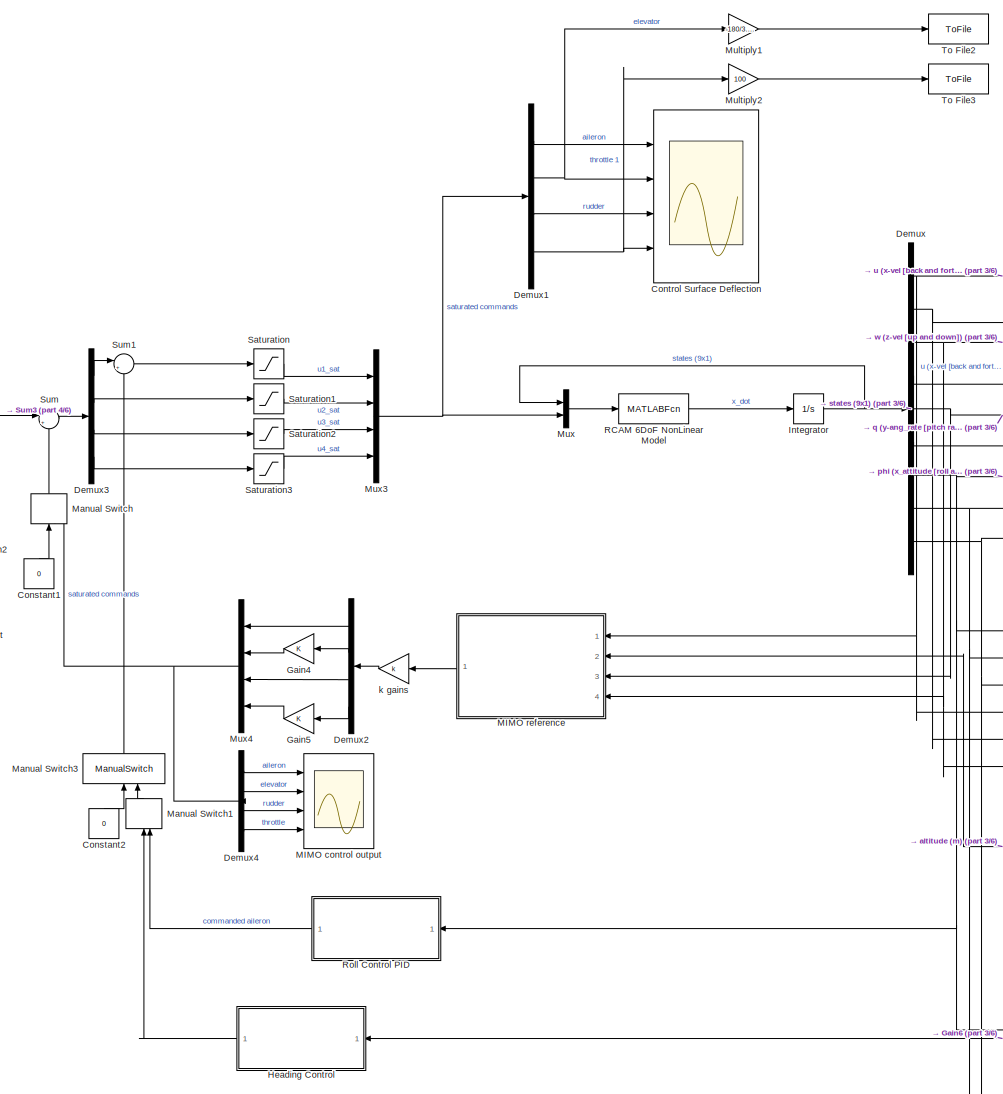
[diagram: root canvas - part 1/6, left side, full height]
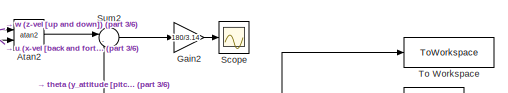
[diagram: root canvas - part 2/6, top right region]
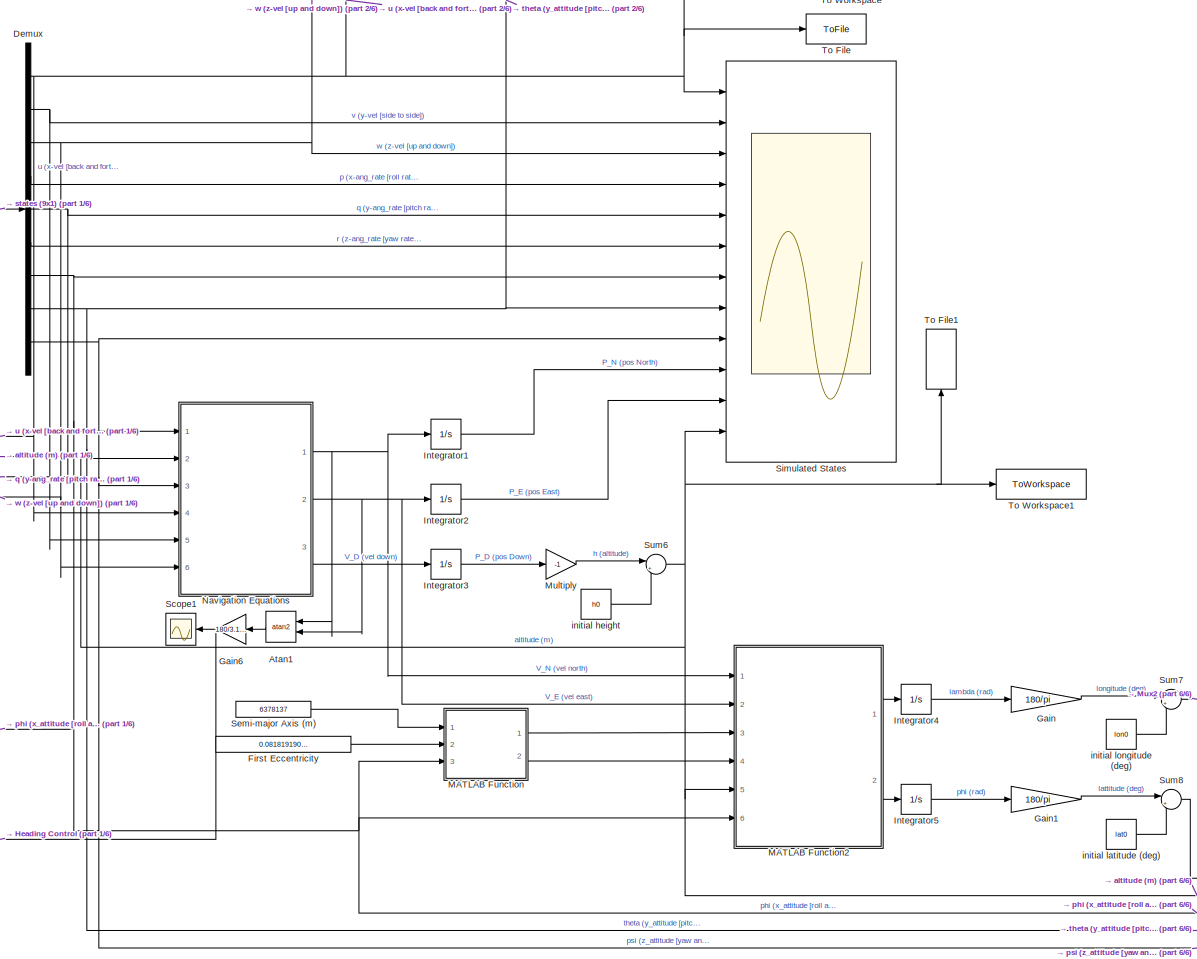
[diagram: root canvas - part 3/6, right side, full height]
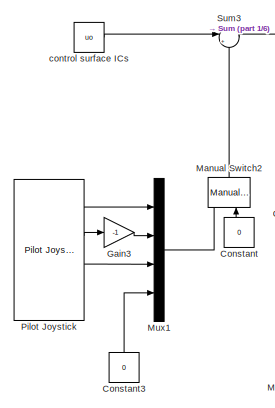
[diagram: root canvas - part 4/6, middle left region]
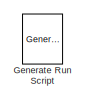
[diagram: root canvas - part 5/6, bottom right region]
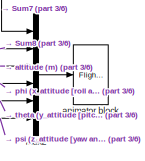
[diagram: root canvas - part 6/6, bottom right region]
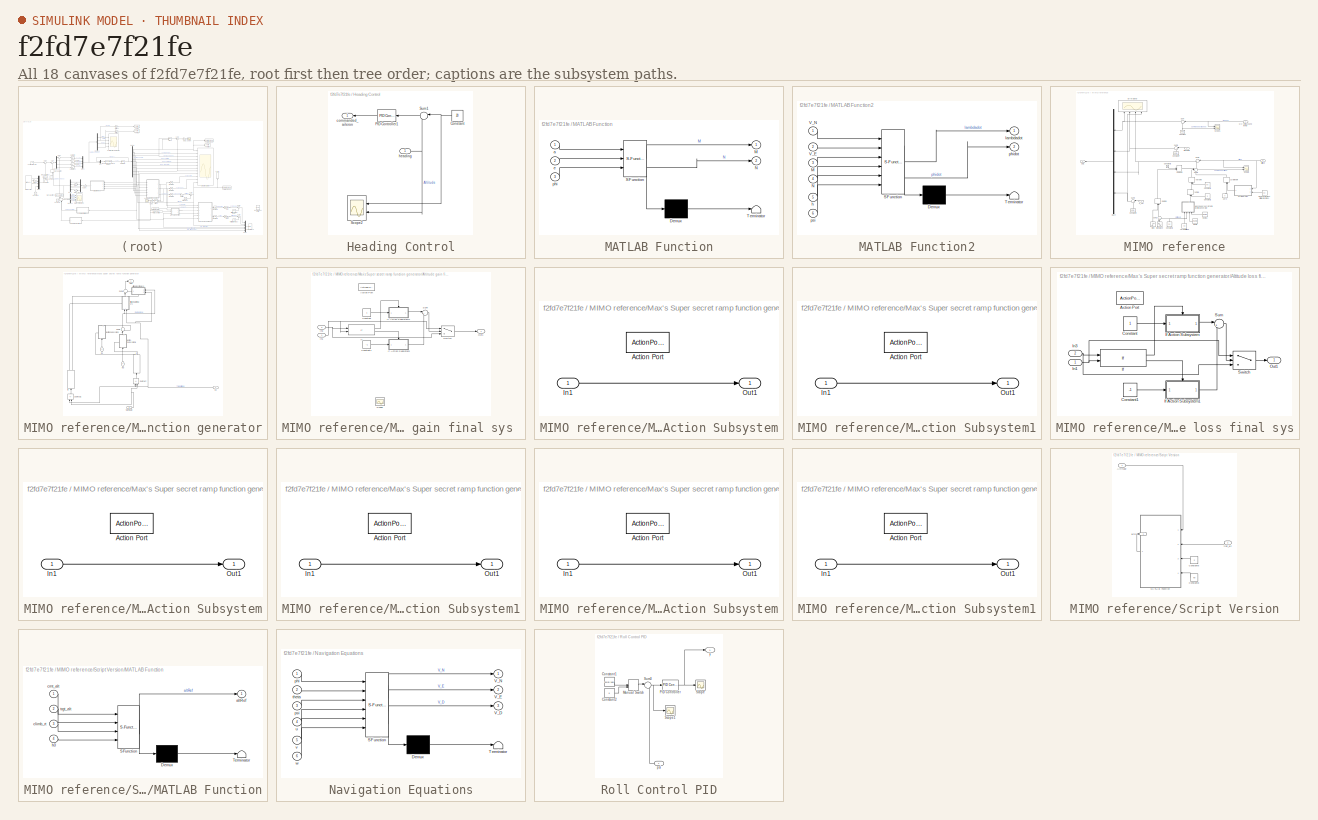
[diagram: thumbnail index - all 18 canvases of the model, root first then tree order]
MODEL slx_f2fd7e7f21fe
KIND model
CONFIG AbsTol = auto
CONFIG EnableMultiTasking = off
CONFIG FixedStep = 0.001
CONFIG MaxStep = auto
CONFIG MinStep = auto
CONFIG RelTol = 1e-3
CONFIG SampleTimeConstraint = Unconstrained
CONFIG SolverName = VariableStepAuto
CONFIG StartTime = 0.0
CONFIG StopTime = TF
WORKSPACE source: mxarray member
WORKSPACE RampTime = 0
BLOCK [Trigonometry] Atan1
  NameLocation = top
  Operator = atan2
  Ports = [2, 1]
BLOCK [Trigonometry] Atan2
  Operator = atan2
  Ports = [2, 1]
BLOCK [Constant] Constant
  NameLocation = right
  Value = 0
BLOCK [Constant] Constant1
  NameLocation = right
  Value = 0
BLOCK [Constant] Constant2
  NameLocation = right
  Value = 0
BLOCK [Constant] Constant3
  NameLocation = right
  Value = 0
BLOCK [Scope] Control Surface Deflection
  Floating = off
  NumInputPorts = 4
  Ports = [4]
  ScopeSpecificationString = Simulink.scopes.TimeScopeBlockCfg('CurrentConfiguration', extmgr.ConfigurationSet(extmgr.Configuration('Core','General UI',true),extmgr.Configuration('Core','Source UI',true),extmgr.Configuration('Sources','WiredSimulink',true),extmgr.Configuration('Visuals','Time Domain',true,'SerializedDisplays',{struct('MinYLimReal','-0.00086','MaxYLimReal','-0.00066','YLabelReal','','MinYLimMag','0.00000','Max...<+3884ch>
BLOCK [Demux] Demux
  Outputs = 9
  Ports = [1, 9]
BLOCK [Demux] Demux1
  Ports = [1, 4]
BLOCK [Demux] Demux2
  NameLocation = top
  Ports = [1, 4]
BLOCK [Demux] Demux3
  Ports = [1, 4]
BLOCK [Demux] Demux4
  Ports = [1, 4]
BLOCK [Constant] First Eccentricity
  Value = 0.081819190842622
BLOCK [Gain] Gain
  Gain = 180/pi
BLOCK [Gain] Gain1
  Gain = 180/pi
BLOCK [Gain] Gain2
  Gain = 180/3.14
BLOCK [Gain] Gain3
  Gain = -1
BLOCK [Gain] Gain4
  NameLocation = top
BLOCK [Gain] Gain5
  NameLocation = top
BLOCK [Gain] Gain6
  Gain = 180/3.1415
  NameLocation = top
BLOCK [Reference] Generate Run Script  REF=aerolibfltsims/Generate
Run Script
  Ports = []
  SourceBlock = aerolibfltsims/Generate\nRun Script
  SourceProductBaseCode = AE
  SourceType = Generate FlightGear Run Script
BLOCK [SubSystem] Heading Control
  NameLocation = top
  Ports = [1, 1]
  RequestExecContextInheritance = off
BLOCK [Constant] Heading Control/Constant
  NameLocation = top
  Value = 20
BLOCK [Reference] Heading Control/PID Controller1  REF=slpidlib/PID Controller
  NameLocation = top
  Ports = [1, 1]
  SourceBlock = slpidlib/PID Controller
  SourceProductBaseCode = SL
  SourceType = PID 1dof
BLOCK [Scope] Heading Control/Scope2
  Floating = off
  NameLocation = top
  NumInputPorts = 2
  Ports = [2]
  ScopeSpecificationString = Simulink.scopes.TimeScopeBlockCfg('CurrentConfiguration', extmgr.ConfigurationSet(extmgr.Configuration('Core','General UI',true),extmgr.Configuration('Core','Source UI',true),extmgr.Configuration('Sources','WiredSimulink',true,'DataLoggingVariableName','ScopeData4'),extmgr.Configuration('Visuals','Time Domain',true,'SerializedDisplays',{struct('MinYLimReal','-27.46887','MaxYLimReal','173.04822','Y...<+1485ch>
BLOCK [Sum] Heading Control/Sum1
  Inputs = |-+
  NameLocation = top
  Ports = [2, 1]
BLOCK [Outport] Heading Control/commanded_aileron
  NameLocation = top
BLOCK [Inport] Heading Control/heading
  NameLocation = top
BLOCK [Integrator] Integrator
  InitialCondition = x0
  Ports = [1, 1]
BLOCK [Integrator] Integrator1
  Ports = [1, 1]
BLOCK [Integrator] Integrator2
  Ports = [1, 1]
BLOCK [Integrator] Integrator3
  Ports = [1, 1]
BLOCK [Integrator] Integrator4
  Ports = [1, 1]
BLOCK [Integrator] Integrator5
  LowerSaturationLimit = -pi
  Ports = [1, 1]
  UpperSaturationLimit = pi
BLOCK [SubSystem] MATLAB Function
  ErrorFcn = Stateflow.Translate.translate
  PermitHierarchicalResolution = ExplicitOnly
  Ports = [3, 2]
  RequestExecContextInheritance = off
  SFBlockType = MATLAB Function
  TreatAsAtomicUnit = on
BLOCK [Demux] MATLAB Function/ Demux 
  Outputs = 1
  Ports = [1, 1]
BLOCK [S-Function] MATLAB Function/ SFunction 
  EnableBusSupport = on
  FunctionName = sf_sfun
  PortCounts = [3 3]
  Ports = [3, 3]
  SFcnIsStateOwnerBlock = off
  SFunctionDeploymentMode = off
  Tag = Stateflow S-Function 1
BLOCK [Terminator] MATLAB Function/ Terminator 
BLOCK [Outport] MATLAB Function/M
BLOCK [Outport] MATLAB Function/N
  Port = 2
BLOCK [Inport] MATLAB Function/a
BLOCK [Inport] MATLAB Function/e
  Port = 2
BLOCK [Inport] MATLAB Function/phi
  Port = 3
BLOCK [SubSystem] MATLAB Function2
  ErrorFcn = Stateflow.Translate.translate
  PermitHierarchicalResolution = ExplicitOnly
  Ports = [6, 2]
  RequestExecContextInheritance = off
  SFBlockType = MATLAB Function
  TreatAsAtomicUnit = on
BLOCK [Demux] MATLAB Function2/ Demux 
  Outputs = 1
  Ports = [1, 1]
BLOCK [S-Function] MATLAB Function2/ SFunction 
  EnableBusSupport = on
  FunctionName = sf_sfun
  PortCounts = [6 3]
  Ports = [6, 3]
  SFcnIsStateOwnerBlock = off
  SFunctionDeploymentMode = off
  Tag = Stateflow S-Function 4
BLOCK [Terminator] MATLAB Function2/ Terminator 
BLOCK [Inport] MATLAB Function2/M
  Port = 3
BLOCK [Inport] MATLAB Function2/N
  Port = 4
BLOCK [Inport] MATLAB Function2/V_E
  Port = 2
BLOCK [Inport] MATLAB Function2/V_N
BLOCK [Inport] MATLAB Function2/h
  Port = 5
BLOCK [Outport] MATLAB Function2/lambdadot
BLOCK [Outport] MATLAB Function2/phidot
  Port = 2
BLOCK [Inport] MATLAB Function2/psi
  Port = 6
BLOCK [Scope] MIMO control output
  Floating = off
  NumInputPorts = 4
  Ports = [4]
  ScopeSpecificationString = Simulink.scopes.TimeScopeBlockCfg('CurrentConfiguration', extmgr.ConfigurationSet(extmgr.Configuration('Core','General UI',true),extmgr.Configuration('Core','Source UI',true),extmgr.Configuration('Sources','WiredSimulink',true,'DataLoggingVariableName','ScopeData1'),extmgr.Configuration('Visuals','Time Domain',true,'SerializedDisplays',{struct('MinYLimReal','-1.00000','MaxYLimReal','1.00000','YLab...<+3490ch>
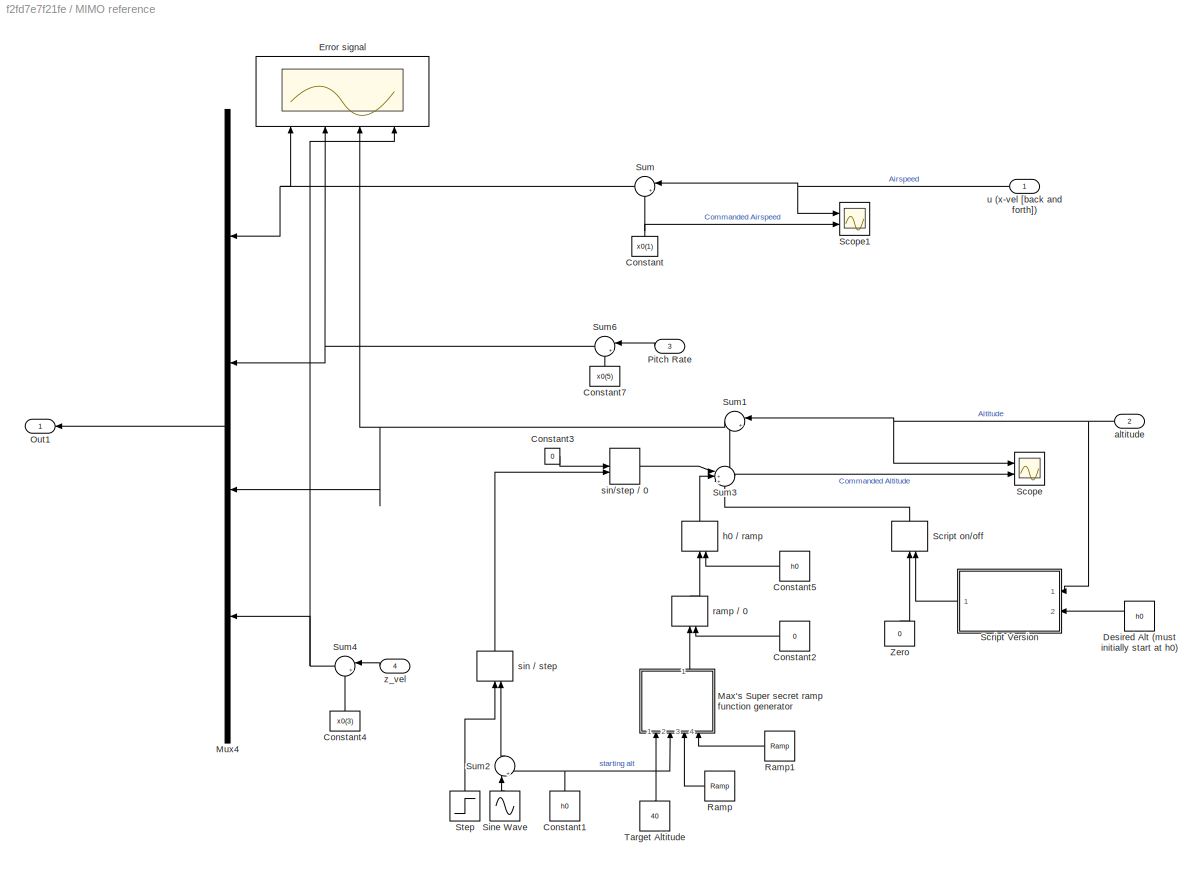
BLOCK [SubSystem] MIMO reference
  NameLocation = top
  Ports = [4, 1]
  RequestExecContextInheritance = off
BLOCK [Constant] MIMO reference/Constant
  NameLocation = right
  Value = x0(1)
BLOCK [Constant] MIMO reference/Constant1
  NameLocation = right
  Value = h0
BLOCK [Constant] MIMO reference/Constant2
  NameLocation = top
  Value = 0
BLOCK [Constant] MIMO reference/Constant3
  Value = 0
BLOCK [Constant] MIMO reference/Constant4
  NameLocation = right
  Value = x0(3)
BLOCK [Constant] MIMO reference/Constant5
  NameLocation = top
  Value = h0
BLOCK [Constant] MIMO reference/Constant7
  NameLocation = right
  Value = x0(5)
BLOCK [Constant] MIMO reference/Desired Alt (must initially start at h0)
  NameLocation = top
  Value = h0
BLOCK [Scope] MIMO reference/Error signal
  Floating = off
  NameLocation = right
  NumInputPorts = 4
  Ports = [4]
  ScopeSpecificationString = Simulink.scopes.TimeScopeBlockCfg('CurrentConfiguration', extmgr.ConfigurationSet(extmgr.Configuration('Core','General UI',true),extmgr.Configuration('Core','Source UI',true),extmgr.Configuration('Sources','WiredSimulink',true,'DataLoggingVariableName','ScopeData1'),extmgr.Configuration('Visuals','Time Domain',true,'SerializedDisplays',{struct('MinYLimReal','-1.66885','MaxYLimReal','0.94564','YLab...<+3477ch>
BLOCK [SubSystem] MIMO reference/Max's Super secret ramp function generator
  NameLocation = right
  Ports = [4, 1]
  RequestExecContextInheritance = off
BLOCK [SubSystem] MIMO reference/Max's Super secret ramp function generator/Altitude gain final sys 
  NameLocation = right
  Ports = [2, 1, 0, 0, 0, 0, 0, 1]
  RequestExecContextInheritance = off
  TreatAsAtomicUnit = on
BLOCK [ActionPort] MIMO reference/Max's Super secret ramp function generator/Altitude gain final sys /Action Port
  ActionPortLabel = if(u1 >= 0)
BLOCK [Constant] MIMO reference/Max's Super secret ramp function generator/Altitude gain final sys /Constant
BLOCK [Constant] MIMO reference/Max's Super secret ramp function generator/Altitude gain final sys /Constant1
  Value = -1
BLOCK [If] MIMO reference/Max's Super secret ramp function generator/Altitude gain final sys /If
  IfExpression = u1 > u2
  NumInputs = 2
  Ports = [2, 2]
BLOCK [SubSystem] MIMO reference/Max's Super secret ramp function generator/Altitude gain final sys /If Action Subsystem
  Ports = [1, 1, 0, 0, 0, 0, 0, 1]
  RequestExecContextInheritance = off
  TreatAsAtomicUnit = on
BLOCK [ActionPort] MIMO reference/Max's Super secret ramp function generator/Altitude gain final sys /If Action Subsystem/Action Port
  ActionPortLabel = else
BLOCK [Inport] MIMO reference/Max's Super secret ramp function generator/Altitude gain final sys /If Action Subsystem/In1
BLOCK [Outport] MIMO reference/Max's Super secret ramp function generator/Altitude gain final sys /If Action Subsystem/Out1
BLOCK [SubSystem] MIMO reference/Max's Super secret ramp function generator/Altitude gain final sys /If Action Subsystem1
  Ports = [1, 1, 0, 0, 0, 0, 0, 1]
  RequestExecContextInheritance = off
  TreatAsAtomicUnit = on
BLOCK [ActionPort] MIMO reference/Max's Super secret ramp function generator/Altitude gain final sys /If Action Subsystem1/Action Port
  ActionPortLabel = if(u1 > u2)
BLOCK [Inport] MIMO reference/Max's Super secret ramp function generator/Altitude gain final sys /If Action Subsystem1/In1
BLOCK [Outport] MIMO reference/Max's Super secret ramp function generator/Altitude gain final sys /If Action Subsystem1/Out1
BLOCK [Inport] MIMO reference/Max's Super secret ramp function generator/Altitude gain final sys /In1
BLOCK [Inport] MIMO reference/Max's Super secret ramp function generator/Altitude gain final sys /In3
  Port = 2
BLOCK [Outport] MIMO reference/Max's Super secret ramp function generator/Altitude gain final sys /Out1
BLOCK [Scope] MIMO reference/Max's Super secret ramp function generator/Altitude gain final sys /Scope
  Floating = off
  NameLocation = left
  NumInputPorts = 4
  Ports = [4]
  ScopeSpecificationString = Simulink.scopes.TimeScopeBlockCfg('CurrentConfiguration', extmgr.ConfigurationSet(extmgr.Configuration('Core','General UI',true),extmgr.Configuration('Core','Source UI',true),extmgr.Configuration('Sources','WiredSimulink',true,'DataLoggingVariableName','ScopeData1'),extmgr.Configuration('Visuals','Time Domain',true,'SerializedDisplays',{struct('MinYLimReal','-1.00000','MaxYLimReal','1.00000','YLab...<+1613ch>
BLOCK [Sum] MIMO reference/Max's Super secret ramp function generator/Altitude gain final sys /Sum
  Inputs = |++
  Ports = [2, 1]
BLOCK [Switch] MIMO reference/Max's Super secret ramp function generator/Altitude gain final sys /Switch
  Criteria = u2 ~= 0
  InputSameDT = off
  SaturateOnIntegerOverflow = off
BLOCK [SubSystem] MIMO reference/Max's Super secret ramp function generator/Altitude loss final sys
  NameLocation = top
  Ports = [2, 1, 0, 0, 0, 0, 0, 1]
  RequestExecContextInheritance = off
  TreatAsAtomicUnit = on
BLOCK [ActionPort] MIMO reference/Max's Super secret ramp function generator/Altitude loss final sys/Action Port
  ActionPortLabel = else
BLOCK [Constant] MIMO reference/Max's Super secret ramp function generator/Altitude loss final sys/Constant
BLOCK [Constant] MIMO reference/Max's Super secret ramp function generator/Altitude loss final sys/Constant1
  Value = -1
BLOCK [If] MIMO reference/Max's Super secret ramp function generator/Altitude loss final sys/If
  IfExpression = u2 > u1
  NumInputs = 2
  Ports = [2, 2]
BLOCK [SubSystem] MIMO reference/Max's Super secret ramp function generator/Altitude loss final sys/If Action Subsystem
  Ports = [1, 1, 0, 0, 0, 0, 0, 1]
  RequestExecContextInheritance = off
  TreatAsAtomicUnit = on
BLOCK [ActionPort] MIMO reference/Max's Super secret ramp function generator/Altitude loss final sys/If Action Subsystem/Action Port
  ActionPortLabel = if(u2 > u1)
BLOCK [Inport] MIMO reference/Max's Super secret ramp function generator/Altitude loss final sys/If Action Subsystem/In1
BLOCK [Outport] MIMO reference/Max's Super secret ramp function generator/Altitude loss final sys/If Action Subsystem/Out1
BLOCK [SubSystem] MIMO reference/Max's Super secret ramp function generator/Altitude loss final sys/If Action Subsystem1
  Ports = [1, 1, 0, 0, 0, 0, 0, 1]
  RequestExecContextInheritance = off
  TreatAsAtomicUnit = on
BLOCK [ActionPort] MIMO reference/Max's Super secret ramp function generator/Altitude loss final sys/If Action Subsystem1/Action Port
  ActionPortLabel = else
BLOCK [Inport] MIMO reference/Max's Super secret ramp function generator/Altitude loss final sys/If Action Subsystem1/In1
BLOCK [Outport] MIMO reference/Max's Super secret ramp function generator/Altitude loss final sys/If Action Subsystem1/Out1
BLOCK [Inport] MIMO reference/Max's Super secret ramp function generator/Altitude loss final sys/In1
BLOCK [Inport] MIMO reference/Max's Super secret ramp function generator/Altitude loss final sys/In3
  Port = 2
BLOCK [Outport] MIMO reference/Max's Super secret ramp function generator/Altitude loss final sys/Out1
BLOCK [Sum] MIMO reference/Max's Super secret ramp function generator/Altitude loss final sys/Sum
  Inputs = |++
  Ports = [2, 1]
BLOCK [Switch] MIMO reference/Max's Super secret ramp function generator/Altitude loss final sys/Switch
  Criteria = u2 > Threshold
  InputSameDT = off
  SaturateOnIntegerOverflow = off
BLOCK [If] MIMO reference/Max's Super secret ramp function generator/If
  IfExpression = u1 >= 0
  NameLocation = right
  Ports = [1, 2]
BLOCK [SubSystem] MIMO reference/Max's Super secret ramp function generator/If Action Subsystem
  NameLocation = right
  Ports = [1, 1, 0, 0, 0, 0, 0, 1]
  RequestExecContextInheritance = off
  TreatAsAtomicUnit = on
BLOCK [ActionPort] MIMO reference/Max's Super secret ramp function generator/If Action Subsystem/Action Port
  ActionPortLabel = if(u1 >= 0)
BLOCK [Inport] MIMO reference/Max's Super secret ramp function generator/If Action Subsystem/In1
BLOCK [Outport] MIMO reference/Max's Super secret ramp function generator/If Action Subsystem/Out1
BLOCK [SubSystem] MIMO reference/Max's Super secret ramp function generator/If Action Subsystem1
  NameLocation = right
  Ports = [1, 1, 0, 0, 0, 0, 0, 1]
  RequestExecContextInheritance = off
  TreatAsAtomicUnit = on
BLOCK [ActionPort] MIMO reference/Max's Super secret ramp function generator/If Action Subsystem1/Action Port
  ActionPortLabel = else
BLOCK [Inport] MIMO reference/Max's Super secret ramp function generator/If Action Subsystem1/In1
BLOCK [Outport] MIMO reference/Max's Super secret ramp function generator/If Action Subsystem1/Out1
BLOCK [If] MIMO reference/Max's Super secret ramp function generator/If1
  IfExpression = u1 >= 0
  NameLocation = right
  Ports = [1, 2]
BLOCK [Inport] MIMO reference/Max's Super secret ramp function generator/In1
  NameLocation = right
  Port = 3
BLOCK [Inport] MIMO reference/Max's Super secret ramp function generator/In2
BLOCK [Inport] MIMO reference/Max's Super secret ramp function generator/In3
  NameLocation = right
  Port = 4
BLOCK [Outport] MIMO reference/Max's Super secret ramp function generator/Out1
BLOCK [Sum] MIMO reference/Max's Super secret ramp function generator/Subtract
  IconShape = rectangular
  Inputs = +-
  NameLocation = right
  Ports = [2, 1]
BLOCK [Sum] MIMO reference/Max's Super secret ramp function generator/Subtract1
  IconShape = rectangular
  Inputs = +-
  NameLocation = right
  Ports = [2, 1]
BLOCK [Sum] MIMO reference/Max's Super secret ramp function generator/Sum2
  Inputs = |++
  NameLocation = right
  Ports = [2, 1]
BLOCK [Sum] MIMO reference/Max's Super secret ramp function generator/Sum4
  Inputs = |++
  NameLocation = right
  Ports = [2, 1]
BLOCK [Inport] MIMO reference/Max's Super secret ramp function generator/starting alt
  Port = 2
BLOCK [Mux] MIMO reference/Mux4
  DisplayOption = bar
  NameLocation = top
  Ports = [4, 1]
BLOCK [Outport] MIMO reference/Out1
BLOCK [Inport] MIMO reference/Pitch Rate
  NameLocation = top
  Port = 3
BLOCK [Reference] MIMO reference/Ramp  REF=simulink/Sources/Ramp
  NameLocation = top
  Ports = [0, 1]
  SourceBlock = simulink/Sources/Ramp
  SourceProductBaseCode = SL
  SourceType = Ramp
BLOCK [Reference] MIMO reference/Ramp1  REF=simulink/Sources/Ramp
  NameLocation = top
  Ports = [0, 1]
  SourceBlock = simulink/Sources/Ramp
  SourceProductBaseCode = SL
  SourceType = Ramp
BLOCK [Scope] MIMO reference/Scope
  Floating = off
  NumInputPorts = 2
  Ports = [2]
  ScopeSpecificationString = Simulink.scopes.TimeScopeBlockCfg('CurrentConfiguration', extmgr.ConfigurationSet(extmgr.Configuration('Core','General UI',true,'FigureColor',[0 0 0]),extmgr.Configuration('Core','Source UI',true),extmgr.Configuration('Sources','WiredSimulink',true,'DataLoggingVariableName','ScopeData1'),extmgr.Configuration('Visuals','Time Domain',true,'SerializedDisplays',{struct('MinYLimReal','-0.39156','MaxYLi...<+1566ch>
BLOCK [Scope] MIMO reference/Scope1
  Floating = off
  NumInputPorts = 2
  Ports = [2]
  ScopeSpecificationString = Simulink.scopes.TimeScopeBlockCfg('CurrentConfiguration', extmgr.ConfigurationSet(extmgr.Configuration('Core','General UI',true,'FigureColor',[0 0 0]),extmgr.Configuration('Core','Source UI',true),extmgr.Configuration('Sources','WiredSimulink',true,'DataLoggingVariableName','ScopeData1'),extmgr.Configuration('Visuals','Time Domain',true,'SerializedDisplays',{struct('MinYLimReal','19.8694','MaxYLim...<+1594ch>
BLOCK [SubSystem] MIMO reference/Script Version
  NameLocation = top
  Ports = [2, 1]
  RequestExecContextInheritance = off
BLOCK [Inport] MIMO reference/Script Version/Altitude
BLOCK [Constant] MIMO reference/Script Version/Constant6
  NameLocation = top
  Value = 2
BLOCK [Constant] MIMO reference/Script Version/Constant8
  NameLocation = top
  Value = h0
BLOCK [SubSystem] MIMO reference/Script Version/MATLAB Function
  ErrorFcn = Stateflow.Translate.translate
  NameLocation = top
  PermitHierarchicalResolution = ExplicitOnly
  Ports = [4, 1]
  RequestExecContextInheritance = off
  SFBlockType = MATLAB Function
  TreatAsAtomicUnit = on
BLOCK [Demux] MIMO reference/Script Version/MATLAB Function/ Demux 
  Outputs = 1
  Ports = [1, 1]
BLOCK [S-Function] MIMO reference/Script Version/MATLAB Function/ SFunction 
  EnableBusSupport = on
  FunctionName = sf_sfun
  PortCounts = [4 2]
  Ports = [4, 2]
  SFcnIsStateOwnerBlock = off
  SFunctionDeploymentMode = off
  Tag = Stateflow S-Function 3
BLOCK [Terminator] MIMO reference/Script Version/MATLAB Function/ Terminator 
BLOCK [Outport] MIMO reference/Script Version/MATLAB Function/altRef
BLOCK [Inport] MIMO reference/Script Version/MATLAB Function/climb_rt
  Port = 3
BLOCK [Inport] MIMO reference/Script Version/MATLAB Function/crnt_alt
BLOCK [Inport] MIMO reference/Script Version/MATLAB Function/h0
  Port = 4
BLOCK [Inport] MIMO reference/Script Version/MATLAB Function/trgt_alt
  Port = 2
BLOCK [Outport] MIMO reference/Script Version/altRef
BLOCK [Inport] MIMO reference/Script Version/trgt_alt
  Port = 2
BLOCK [ManualSwitch] MIMO reference/Script on//off
  CurrentSetting = 0
  NameLocation = right
BLOCK [Sin] MIMO reference/Sine Wave
  Amplitude = 10
  Frequency = 0.1
  NameLocation = right
  Ports = [0, 1]
  SampleTime = 0
BLOCK [Step] MIMO reference/Step
  After = 51
  Before = 50
  NameLocation = right
  SampleTime = 0
  Time = 10
BLOCK [Sum] MIMO reference/Sum
  Inputs = |+-
  NameLocation = top
  Ports = [2, 1]
BLOCK [Sum] MIMO reference/Sum1
  Inputs = |+-
  NameLocation = top
  Ports = [2, 1]
BLOCK [Sum] MIMO reference/Sum2
  Inputs = |++
  NameLocation = right
  Ports = [2, 1]
BLOCK [Sum] MIMO reference/Sum3
  Inputs = |+++
  Ports = [3, 1]
BLOCK [Sum] MIMO reference/Sum4
  Inputs = |+-
  NameLocation = top
  Ports = [2, 1]
BLOCK [Sum] MIMO reference/Sum6
  Inputs = |+-
  NameLocation = top
  Ports = [2, 1]
BLOCK [Constant] MIMO reference/Target Altitude
  NameLocation = right
  Value = 40
BLOCK [Constant] MIMO reference/Zero
  NameLocation = right
  OutDataTypeStr = Inherit: Inherit via back propagation
  Value = 0
BLOCK [Inport] MIMO reference/altitude
  Port = 2
BLOCK [ManualSwitch] MIMO reference/h0 // ramp
  NameLocation = right
BLOCK [ManualSwitch] MIMO reference/ramp // 0
  CurrentSetting = 0
  NameLocation = right
BLOCK [ManualSwitch] MIMO reference/sin // step
  NameLocation = right
BLOCK [ManualSwitch] MIMO reference/sin//step // 0
BLOCK [Inport] MIMO reference/u (x-vel [back and forth])
BLOCK [Inport] MIMO reference/z_vel
  NameLocation = top
  Port = 4
BLOCK [ManualSwitch] Manual Switch
  NameLocation = right
BLOCK [ManualSwitch] Manual Switch1
  CurrentSetting = 0
  NameLocation = right
BLOCK [ManualSwitch] Manual Switch2
  NameLocation = right
BLOCK [ManualSwitch] Manual Switch3
  NameLocation = right
BLOCK [Gain] Multiply
  Gain = -1
BLOCK [Gain] Multiply1
  Gain = -180/3.1415
BLOCK [Gain] Multiply2
  Gain = 100
BLOCK [Mux] Mux
  DisplayOption = bar
  Inputs = 2
  Ports = [2, 1]
BLOCK [Mux] Mux1
  DisplayOption = bar
  Ports = [4, 1]
BLOCK [Mux] Mux2
  DisplayOption = bar
  Inputs = 6
  Ports = [6, 1]
BLOCK [Mux] Mux3
  DisplayOption = bar
  Ports = [4, 1]
BLOCK [Mux] Mux4
  DisplayOption = bar
  NameLocation = top
  Ports = [4, 1]
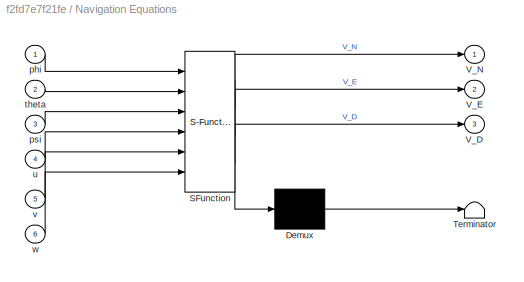
BLOCK [SubSystem] Navigation Equations
  ErrorFcn = Stateflow.Translate.translate
  PermitHierarchicalResolution = ExplicitOnly
  Ports = [6, 3]
  RequestExecContextInheritance = off
  SFBlockType = MATLAB Function
  TreatAsAtomicUnit = on
BLOCK [Demux] Navigation Equations/ Demux 
  Outputs = 1
  Ports = [1, 1]
BLOCK [S-Function] Navigation Equations/ SFunction 
  EnableBusSupport = on
  FunctionName = sf_sfun
  PortCounts = [6 4]
  Ports = [6, 4]
  SFcnIsStateOwnerBlock = off
  SFunctionDeploymentMode = off
  Tag = Stateflow S-Function 2
BLOCK [Terminator] Navigation Equations/ Terminator 
BLOCK [Outport] Navigation Equations/V_D
  Port = 3
BLOCK [Outport] Navigation Equations/V_E
  Port = 2
BLOCK [Outport] Navigation Equations/V_N
BLOCK [Inport] Navigation Equations/phi
BLOCK [Inport] Navigation Equations/psi
  Port = 3
BLOCK [Inport] Navigation Equations/theta
  Port = 2
BLOCK [Inport] Navigation Equations/u
  Port = 4
BLOCK [Inport] Navigation Equations/v
  Port = 5
BLOCK [Inport] Navigation Equations/w
  Port = 6
BLOCK [Reference] Pilot Joystick  REF=aerolibanimutils/Pilot Joystick
  Ports = [0, 4]
  SourceBlock = aerolibanimutils/Pilot Joystick
  SourceProductBaseCode = AE
  SourceType = PilotJoystick
BLOCK [MATLABFcn] RCAM 6DoF NonLinear Model
  MATLABFcn = RCAM_model_CFD(u(1:9), u(10:13))
  Ports = [1, 1]
BLOCK [SubSystem] Roll Control PID
  NameLocation = top
  Ports = [1, 1]
  RequestExecContextInheritance = off
BLOCK [Constant] Roll Control PID/Constant1
  Value = 30*pi/180
BLOCK [Constant] Roll Control PID/Constant2
  Value = 0
BLOCK [ManualSwitch] Roll Control PID/Manual Switch
  CurrentSetting = 0
BLOCK [Reference] Roll Control PID/PID Controller  REF=slpidlib/PID Controller
  Ports = [1, 1]
  SourceBlock = slpidlib/PID Controller
  SourceProductBaseCode = SL
  SourceType = PID 1dof
BLOCK [Scope] Roll Control PID/Scope
  Floating = off
  NumInputPorts = 1
  Ports = [1]
  ScopeSpecificationString = Simulink.scopes.TimeScopeBlockCfg('CurrentConfiguration', extmgr.ConfigurationSet(extmgr.Configuration('Core','General UI',true),extmgr.Configuration('Core','Source UI',true),extmgr.Configuration('Sources','WiredSimulink',true,'DataLoggingVariableName','ScopeData1'),extmgr.Configuration('Visuals','Time Domain',true,'SerializedDisplays',{struct('MinYLimReal','-0.51269','MaxYLimReal','0.25089','YLab...<+1373ch>
BLOCK [Scope] Roll Control PID/Scope1
  Floating = off
  NumInputPorts = 1
  Ports = [1]
  ScopeSpecificationString = Simulink.scopes.TimeScopeBlockCfg('CurrentConfiguration', extmgr.ConfigurationSet(extmgr.Configuration('Core','General UI',true),extmgr.Configuration('Core','Source UI',true),extmgr.Configuration('Sources','WiredSimulink',true,'DataLoggingVariableName','ScopeData2'),extmgr.Configuration('Visuals','Time Domain',true,'SerializedDisplays',{struct('MinYLimReal','-1.00000','MaxYLimReal','1.00000','YLab...<+1363ch>
BLOCK [Sum] Roll Control PID/Sum3
  Inputs = |-+
  Ports = [2, 1]
BLOCK [Inport] Roll Control PID/psi
BLOCK [Outport] Roll Control PID/y
BLOCK [Saturate] Saturation
  LowerLimit = u1min
  UpperLimit = u1max
BLOCK [Saturate] Saturation1
  LowerLimit = u2min
  UpperLimit = u2max
BLOCK [Saturate] Saturation2
  LowerLimit = u3min
  UpperLimit = u3max
BLOCK [Saturate] Saturation3
  LowerLimit = u4min
  UpperLimit = u4max
BLOCK [Scope] Scope
  Floating = off
  NumInputPorts = 1
  Ports = [1]
  ScopeSpecificationString = Simulink.scopes.TimeScopeBlockCfg('CurrentConfiguration', extmgr.ConfigurationSet(extmgr.Configuration('Core','General UI',true),extmgr.Configuration('Core','Source UI',true),extmgr.Configuration('Sources','WiredSimulink',true,'DataLoggingVariableName','ScopeData1'),extmgr.Configuration('Visuals','Time Domain',true,'SerializedDisplays',{struct('MinYLimReal','-4.64723','MaxYLimReal','9.3569','YLabe...<+1390ch>
BLOCK [Scope] Scope1
  Floating = off
  NameLocation = top
  NumInputPorts = 1
  Ports = [1]
  ScopeSpecificationString = Simulink.scopes.TimeScopeBlockCfg('CurrentConfiguration', extmgr.ConfigurationSet(extmgr.Configuration('Core','General UI',true),extmgr.Configuration('Core','Source UI',true),extmgr.Configuration('Sources','WiredSimulink',true,'DataLoggingVariableName','ScopeData1'),extmgr.Configuration('Visuals','Time Domain',true),extmgr.Configuration('Tools','Plot Navigation',true),extmgr.Configuration('Tools',...<+40ch>
BLOCK [Constant] Semi-major Axis (m)
  Value = 6378137
BLOCK [Scope] Simulated States
  Floating = off
  NumInputPorts = 12
  Ports = [12]
  ScopeSpecificationString = Simulink.scopes.TimeScopeBlockCfg('CurrentConfiguration', extmgr.ConfigurationSet(extmgr.Configuration('Core','General UI',true),extmgr.Configuration('Core','Source UI',true),extmgr.Configuration('Sources','WiredSimulink',true,'DataLoggingVariableName','ScopeData1'),extmgr.Configuration('Visuals','Time Domain',true,'SerializedDisplays',{struct('MinYLimReal','14.36324','MaxYLimReal','22.70362','YLa...<+9293ch>
BLOCK [Sum] Sum
  Inputs = |++
  Ports = [2, 1]
BLOCK [Sum] Sum1
  Inputs = |++
  Ports = [2, 1]
BLOCK [Sum] Sum2
  Inputs = |-+
  Ports = [2, 1]
BLOCK [Sum] Sum3
  Inputs = |++
  Ports = [2, 1]
BLOCK [Sum] Sum6
  Inputs = |++
  Ports = [2, 1]
BLOCK [Sum] Sum7
  Inputs = |++
  Ports = [2, 1]
BLOCK [Sum] Sum8
  Inputs = |++
  Ports = [2, 1]
BLOCK [ToFile] To File
  Filename = speed.mat
  MatrixName = speed
  Ports = [1]
  SaveFormat = Timeseries
BLOCK [ToFile] To File1
  Filename = data_alt.mat
  MatrixName = altitude
  NameLocation = right
  Ports = [1]
  SaveFormat = Timeseries
BLOCK [ToFile] To File2
  Filename = data_elevator.mat
  MatrixName = elvtr_dt
  Ports = [1]
  SaveFormat = Timeseries
BLOCK [ToFile] To File3
  Filename = data_throttle.mat
  MatrixName = thrtl_dt
  Ports = [1]
  SaveFormat = Timeseries
BLOCK [ToWorkspace] To Workspace
  FixptAsFi = on
  MaxDataPoints = inf
  Ports = [1]
  SampleTime = -1
  SaveFormat = Timeseries
  VariableName = plane_speed
BLOCK [ToWorkspace] To Workspace1
  FixptAsFi = on
  MaxDataPoints = inf
  Ports = [1]
  SampleTime = -1
  SaveFormat = Timeseries
  VariableName = plane_alt
BLOCK [Reference] animator block  REF=aerolibfltsims/FlightGear
Preconfigured
6DoF Animation
  Ports = [1]
  SourceBlock = aerolibfltsims/FlightGear\nPreconfigured\n6DoF Animation
  SourceProductBaseCode = AE
  SourceType = FlightGearQuick6DoFAnimation
BLOCK [Constant] control surface ICs
  Value = uo
BLOCK [Constant] initial height
  Value = h0
BLOCK [Constant] initial latitude (deg)
  Value = lat0
BLOCK [Constant] initial longitude (deg)
  Value = lon0
BLOCK [Gain] k gains
  Gain = k
  Multiplication = Matrix(K*u)
  NameLocation = top
LINE Atan1:1 -> Gain6:1
LINE Atan2:1 -> Sum2:1
LINE Constant1:1 -> Manual Switch:1
LINE Constant2:1 -> Manual Switch3:1
LINE Constant3:1 -> Mux1:4
LINE Constant:1 -> Manual Switch2:2
LINE Demux1:1 -> Control Surface Deflection:1
NET Demux1:2 -> Control Surface Deflection:2, Multiply1:1
LINE Demux1:3 -> Control Surface Deflection:3
NET Demux1:4 -> Control Surface Deflection:4, Multiply2:1
LINE Demux2:1 -> Mux4:1
LINE Demux2:2 -> Gain4:1
LINE Demux2:3 -> Mux4:3
LINE Demux2:4 -> Gain5:1
LINE Demux3:1 -> Sum1:1
LINE Demux3:2 -> Saturation1:1
LINE Demux3:3 -> Saturation2:1
LINE Demux3:4 -> Saturation3:1
LINE Demux4:1 -> MIMO control output:1
LINE Demux4:2 -> MIMO control output:2
LINE Demux4:3 -> MIMO control output:3
LINE Demux4:4 -> MIMO control output:4
NET Demux:1 -> Atan2:2, MIMO reference:1, Navigation Equations:4, Simulated States:1, To File:1, To Workspace:1
NET Demux:2 -> Navigation Equations:5, Simulated States:2
NET Demux:3 -> Atan2:1, MIMO reference:4, Navigation Equations:6, Simulated States:3
LINE Demux:4 -> Simulated States:4
NET Demux:5 -> MIMO reference:3, Simulated States:5
LINE Demux:6 -> Simulated States:6
NET Demux:7 -> MATLAB Function2:6, MATLAB Function:3, Mux2:4, Navigation Equations:1, Roll Control PID:1, Simulated States:7
NET Demux:8 -> Mux2:5, Navigation Equations:2, Simulated States:8, Sum2:2
NET Demux:9 -> Mux2:6, Navigation Equations:3, Simulated States:9
LINE First Eccentricity:1 -> MATLAB Function:2
LINE Gain1:1 -> Sum8:1
LINE Gain2:1 -> Scope:1
LINE Gain3:1 -> Mux1:2
LINE Gain4:1 -> Mux4:2
LINE Gain5:1 -> Mux4:4
NET Gain6:1 -> Heading Control:1, Scope1:1
LINE Gain:1 -> Sum7:1
NET Heading Control/Constant:1 -> Heading Control/Scope2:1, Heading Control/Sum1:1
LINE Heading Control/PID Controller1:1 -> Heading Control/commanded_aileron:1
LINE Heading Control/Sum1:1 -> Heading Control/PID Controller1:1
NET Heading Control/heading:1 -> Heading Control/Scope2:2, Heading Control/Sum1:2
LINE Heading Control:1 -> Manual Switch1:1
LINE Integrator1:1 -> Simulated States:10
LINE Integrator2:1 -> Simulated States:11
LINE Integrator3:1 -> Multiply:1
LINE Integrator4:1 -> Gain:1
LINE Integrator5:1 -> Gain1:1
NET Integrator:1 -> Demux:1, Mux:1
LINE MATLAB Function2:1 -> Integrator4:1
LINE MATLAB Function2:2 -> Integrator5:1
LINE MATLAB Function:1 -> MATLAB Function2:3
LINE MATLAB Function:2 -> MATLAB Function2:4
NET MIMO reference/Constant1:1 -> MIMO reference/Max's Super secret ramp function generator:2, MIMO reference/Sum2:2
LINE MIMO reference/Constant2:1 -> MIMO reference/ramp // 0:2
LINE MIMO reference/Constant3:1 -> MIMO reference/sin//step // 0:1
LINE MIMO reference/Constant4:1 -> MIMO reference/Sum4:2
LINE MIMO reference/Constant5:1 -> MIMO reference/h0 // ramp:2
LINE MIMO reference/Constant7:1 -> MIMO reference/Sum6:2
NET MIMO reference/Constant:1 -> MIMO reference/Scope1:2, MIMO reference/Sum:2
LINE MIMO reference/Desired Alt (must initially start at h0):1 -> MIMO reference/Script Version:2
LINE MIMO reference/Max's Super secret ramp function generator/Altitude gain final sys /Constant1:1 -> MIMO reference/Max's Super secret ramp function generator/Altitude gain final sys /If Action Subsystem:1
LINE MIMO reference/Max's Super secret ramp function generator/Altitude gain final sys /Constant:1 -> MIMO reference/Max's Super secret ramp function generator/Altitude gain final sys /If Action Subsystem1:1
LINE MIMO reference/Max's Super secret ramp function generator/Altitude gain final sys /If Action Subsystem/In1:1 -> MIMO reference/Max's Super secret ramp function generator/Altitude gain final sys /If Action Subsystem/Out1:1
LINE MIMO reference/Max's Super secret ramp function generator/Altitude gain final sys /If Action Subsystem1/In1:1 -> MIMO reference/Max's Super secret ramp function generator/Altitude gain final sys /If Action Subsystem1/Out1:1
LINE MIMO reference/Max's Super secret ramp function generator/Altitude gain final sys /If Action Subsystem1:1 -> MIMO reference/Max's Super secret ramp function generator/Altitude gain final sys /Sum:1
LINE MIMO reference/Max's Super secret ramp function generator/Altitude gain final sys /If Action Subsystem:1 -> MIMO reference/Max's Super secret ramp function generator/Altitude gain final sys /Sum:2
LINE MIMO reference/Max's Super secret ramp function generator/Altitude gain final sys /If:1 -> MIMO reference/Max's Super secret ramp function generator/Altitude gain final sys /If Action Subsystem1:ifaction
LINE MIMO reference/Max's Super secret ramp function generator/Altitude gain final sys /If:2 -> MIMO reference/Max's Super secret ramp function generator/Altitude gain final sys /If Action Subsystem:ifaction
NET MIMO reference/Max's Super secret ramp function generator/Altitude gain final sys /In1:1 -> MIMO reference/Max's Super secret ramp function generator/Altitude gain final sys /If:2, MIMO reference/Max's Super secret ramp function generator/Altitude gain final sys /Switch:1
NET MIMO reference/Max's Super secret ramp function generator/Altitude gain final sys /In3:1 -> MIMO reference/Max's Super secret ramp function generator/Altitude gain final sys /If:1, MIMO reference/Max's Super secret ramp function generator/Altitude gain final sys /Switch:3
LINE MIMO reference/Max's Super secret ramp function generator/Altitude gain final sys /Sum:1 -> MIMO reference/Max's Super secret ramp function generator/Altitude gain final sys /Switch:2
LINE MIMO reference/Max's Super secret ramp function generator/Altitude gain final sys /Switch:1 -> MIMO reference/Max's Super secret ramp function generator/Altitude gain final sys /Out1:1
LINE MIMO reference/Max's Super secret ramp function generator/Altitude gain final sys :1 -> MIMO reference/Max's Super secret ramp function generator/Sum4:1
LINE MIMO reference/Max's Super secret ramp function generator/Altitude loss final sys/Constant1:1 -> MIMO reference/Max's Super secret ramp function generator/Altitude loss final sys/If Action Subsystem1:1
LINE MIMO reference/Max's Super secret ramp function generator/Altitude loss final sys/Constant:1 -> MIMO reference/Max's Super secret ramp function generator/Altitude loss final sys/If Action Subsystem:1
LINE MIMO reference/Max's Super secret ramp function generator/Altitude loss final sys/If Action Subsystem/In1:1 -> MIMO reference/Max's Super secret ramp function generator/Altitude loss final sys/If Action Subsystem/Out1:1
LINE MIMO reference/Max's Super secret ramp function generator/Altitude loss final sys/If Action Subsystem1/In1:1 -> MIMO reference/Max's Super secret ramp function generator/Altitude loss final sys/If Action Subsystem1/Out1:1
LINE MIMO reference/Max's Super secret ramp function generator/Altitude loss final sys/If Action Subsystem1:1 -> MIMO reference/Max's Super secret ramp function generator/Altitude loss final sys/Sum:2
LINE MIMO reference/Max's Super secret ramp function generator/Altitude loss final sys/If Action Subsystem:1 -> MIMO reference/Max's Super secret ramp function generator/Altitude loss final sys/Sum:1
LINE MIMO reference/Max's Super secret ramp function generator/Altitude loss final sys/If:1 -> MIMO reference/Max's Super secret ramp function generator/Altitude loss final sys/If Action Subsystem:ifaction
LINE MIMO reference/Max's Super secret ramp function generator/Altitude loss final sys/If:2 -> MIMO reference/Max's Super secret ramp function generator/Altitude loss final sys/If Action Subsystem1:ifaction
NET MIMO reference/Max's Super secret ramp function generator/Altitude loss final sys/In1:1 -> MIMO reference/Max's Super secret ramp function generator/Altitude loss final sys/If:2, MIMO reference/Max's Super secret ramp function generator/Altitude loss final sys/Switch:1
NET MIMO reference/Max's Super secret ramp function generator/Altitude loss final sys/In3:1 -> MIMO reference/Max's Super secret ramp function generator/Altitude loss final sys/If:1, MIMO reference/Max's Super secret ramp function generator/Altitude loss final sys/Switch:3
LINE MIMO reference/Max's Super secret ramp function generator/Altitude loss final sys/Sum:1 -> MIMO reference/Max's Super secret ramp function generator/Altitude loss final sys/Switch:2
LINE MIMO reference/Max's Super secret ramp function generator/Altitude loss final sys/Switch:1 -> MIMO reference/Max's Super secret ramp function generator/Altitude loss final sys/Out1:1
LINE MIMO reference/Max's Super secret ramp function generator/Altitude loss final sys:1 -> MIMO reference/Max's Super secret ramp function generator/Sum4:2
LINE MIMO reference/Max's Super secret ramp function generator/If Action Subsystem/In1:1 -> MIMO reference/Max's Super secret ramp function generator/If Action Subsystem/Out1:1
LINE MIMO reference/Max's Super secret ramp function generator/If Action Subsystem1/In1:1 -> MIMO reference/Max's Super secret ramp function generator/If Action Subsystem1/Out1:1
LINE MIMO reference/Max's Super secret ramp function generator/If Action Subsystem1:1 -> MIMO reference/Max's Super secret ramp function generator/Sum2:1
LINE MIMO reference/Max's Super secret ramp function generator/If Action Subsystem:1 -> MIMO reference/Max's Super secret ramp function generator/Sum2:2
LINE MIMO reference/Max's Super secret ramp function generator/If1:1 -> MIMO reference/Max's Super secret ramp function generator/Altitude gain final sys :ifaction
LINE MIMO reference/Max's Super secret ramp function generator/If1:2 -> MIMO reference/Max's Super secret ramp function generator/Altitude loss final sys:ifaction
LINE MIMO reference/Max's Super secret ramp function generator/If:1 -> MIMO reference/Max's Super secret ramp function generator/If Action Subsystem:ifaction
LINE MIMO reference/Max's Super secret ramp function generator/If:2 -> MIMO reference/Max's Super secret ramp function generator/If Action Subsystem1:ifaction
LINE MIMO reference/Max's Super secret ramp function generator/In1:1 -> MIMO reference/Max's Super secret ramp function generator/If Action Subsystem:1
NET MIMO reference/Max's Super secret ramp function generator/In2:1 -> MIMO reference/Max's Super secret ramp function generator/Altitude gain final sys :2, MIMO reference/Max's Super secret ramp function generator/Altitude loss final sys:2, MIMO reference/Max's Super secret ramp function generator/Subtract1:1, MIMO reference/Max's Super secret ramp function generator/Subtract:1
LINE MIMO reference/Max's Super secret ramp function generator/In3:1 -> MIMO reference/Max's Super secret ramp function generator/If Action Subsystem1:1
LINE MIMO reference/Max's Super secret ramp function generator/Subtract1:1 -> MIMO reference/Max's Super secret ramp function generator/If1:1
LINE MIMO reference/Max's Super secret ramp function generator/Subtract:1 -> MIMO reference/Max's Super secret ramp function generator/If:1
NET MIMO reference/Max's Super secret ramp function generator/Sum2:1 -> MIMO reference/Max's Super secret ramp function generator/Altitude gain final sys :1, MIMO reference/Max's Super secret ramp function generator/Altitude loss final sys:1
LINE MIMO reference/Max's Super secret ramp function generator/Sum4:1 -> MIMO reference/Max's Super secret ramp function generator/Out1:1
NET MIMO reference/Max's Super secret ramp function generator/starting alt:1 -> MIMO reference/Max's Super secret ramp function generator/Subtract1:2, MIMO reference/Max's Super secret ramp function generator/Subtract:2
LINE MIMO reference/Max's Super secret ramp function generator:1 -> MIMO reference/ramp // 0:1
LINE MIMO reference/Mux4:1 -> MIMO reference/Out1:1
LINE MIMO reference/Pitch Rate:1 -> MIMO reference/Sum6:1
LINE MIMO reference/Ramp1:1 -> MIMO reference/Max's Super secret ramp function generator:4
LINE MIMO reference/Ramp:1 -> MIMO reference/Max's Super secret ramp function generator:3
LINE MIMO reference/Script Version/Altitude:1 -> MIMO reference/Script Version/MATLAB Function:1
LINE MIMO reference/Script Version/Constant6:1 -> MIMO reference/Script Version/MATLAB Function:3
LINE MIMO reference/Script Version/Constant8:1 -> MIMO reference/Script Version/MATLAB Function:4
LINE MIMO reference/Script Version/MATLAB Function:1 -> MIMO reference/Script Version/altRef:1
LINE MIMO reference/Script Version/trgt_alt:1 -> MIMO reference/Script Version/MATLAB Function:2
LINE MIMO reference/Script Version:1 -> MIMO reference/Script on//off:2
LINE MIMO reference/Script on//off:1 -> MIMO reference/Sum3:3
LINE MIMO reference/Sine Wave:1 -> MIMO reference/Sum2:1
LINE MIMO reference/Step:1 -> MIMO reference/sin // step:1
NET MIMO reference/Sum1:1 -> MIMO reference/Error signal:3, MIMO reference/Mux4:3
LINE MIMO reference/Sum2:1 -> MIMO reference/sin // step:2
NET MIMO reference/Sum3:1 -> MIMO reference/Scope:2, MIMO reference/Sum1:2
NET MIMO reference/Sum4:1 -> MIMO reference/Error signal:4, MIMO reference/Mux4:4
NET MIMO reference/Sum6:1 -> MIMO reference/Error signal:2, MIMO reference/Mux4:2
NET MIMO reference/Sum:1 -> MIMO reference/Error signal:1, MIMO reference/Mux4:1
LINE MIMO reference/Target Altitude:1 -> MIMO reference/Max's Super secret ramp function generator:1
LINE MIMO reference/Zero:1 -> MIMO reference/Script on//off:1
NET MIMO reference/altitude:1 -> MIMO reference/Scope:1, MIMO reference/Script Version:1, MIMO reference/Sum1:1
LINE MIMO reference/h0 // ramp:1 -> MIMO reference/Sum3:2
LINE MIMO reference/ramp // 0:1 -> MIMO reference/h0 // ramp:1
LINE MIMO reference/sin // step:1 -> MIMO reference/sin//step // 0:2
LINE MIMO reference/sin//step // 0:1 -> MIMO reference/Sum3:1
NET MIMO reference/u (x-vel [back and forth]):1 -> MIMO reference/Scope1:1, MIMO reference/Sum:1
LINE MIMO reference/z_vel:1 -> MIMO reference/Sum4:1
LINE MIMO reference:1 -> k gains:1
LINE Manual Switch1:1 -> Manual Switch3:2
LINE Manual Switch2:1 -> Sum3:2
LINE Manual Switch3:1 -> Sum1:2
LINE Manual Switch:1 -> Sum:2
LINE Multiply1:1 -> To File2:1
LINE Multiply2:1 -> To File3:1
LINE Multiply:1 -> Sum6:1
LINE Mux1:1 -> Manual Switch2:1
LINE Mux2:1 -> animator block:1
NET Mux3:1 -> Demux1:1, Mux:2
NET Mux4:1 -> Demux4:1, Manual Switch:2
LINE Mux:1 -> RCAM 6DoF NonLinear Model:1
NET Navigation Equations:1 -> Atan1:1, Integrator1:1, MATLAB Function2:1
NET Navigation Equations:2 -> Atan1:2, Integrator2:1, MATLAB Function2:2
LINE Navigation Equations:3 -> Integrator3:1
LINE Pilot Joystick:1 -> Mux1:1
LINE Pilot Joystick:2 -> Gain3:1
LINE Pilot Joystick:3 -> Mux1:3
LINE RCAM 6DoF NonLinear Model:1 -> Integrator:1
LINE Roll Control PID/Constant1:1 -> Roll Control PID/Manual Switch:1
LINE Roll Control PID/Constant2:1 -> Roll Control PID/Manual Switch:2
LINE Roll Control PID/Manual Switch:1 -> Roll Control PID/Sum3:1
NET Roll Control PID/PID Controller:1 -> Roll Control PID/Scope:1, Roll Control PID/y:1
NET Roll Control PID/Sum3:1 -> Roll Control PID/PID Controller:1, Roll Control PID/Scope1:1
LINE Roll Control PID/psi:1 -> Roll Control PID/Sum3:2
LINE Roll Control PID:1 -> Manual Switch1:2
LINE Saturation1:1 -> Mux3:2
LINE Saturation2:1 -> Mux3:3
LINE Saturation3:1 -> Mux3:4
LINE Saturation:1 -> Mux3:1
LINE Semi-major Axis (m):1 -> MATLAB Function:1
LINE Sum1:1 -> Saturation:1
LINE Sum2:1 -> Gain2:1
LINE Sum3:1 -> Sum:1
NET Sum6:1 -> MATLAB Function2:5, MIMO reference:2, Mux2:3, Simulated States:12, To File1:1, To Workspace1:1
LINE Sum7:1 -> Mux2:1
LINE Sum8:1 -> Mux2:2
LINE Sum:1 -> Demux3:1
LINE control surface ICs:1 -> Sum3:1
LINE initial height:1 -> Sum6:2
LINE initial latitude (deg):1 -> Sum8:2
LINE initial longitude (deg):1 -> Sum7:2
LINE k gains:1 -> Demux2:1
note: NET lines group one-source signal fan-out (src -> all destinations, sorted); 1:1 wires keep LINE
CHART MATLAB Function states=1 transitions=1
  STATE_LABEL 'eML_blk_kernel()'
  STATE_LABEL 'SCRIPT:\nfunction [M, N] = calculate_mn (a, e, phi)\n\nM = a*(1-e^2)/(1-(e^2)*sin(phi)^2)^1.5;\n\nN = a/(1-(e^2)*sin(phi)^2)^0.5;\n\nend\n'
CHART Navigation Equations states=1 transitions=1
  STATE_LABEL 'eML_blk_kernel()'
  STATE_LABEL "SCRIPT:\nfunction [V_N, V_E, V_D] = navigation_equation(phi, theta, psi, u, v, w)\n\nx7 = phi;\nx8 = theta;\nx9 = psi;\nx1 = u;\nx2 = v;\nx3 = w;\n\nV_b = [x1; x2; x3];\n\n%navigation equations\nC1v = [cos(x9) sin(x9) 0; -sin(x9) cos(x9) 0; 0 0 1];\n\nC21 = [cos(x8) 0 -sin(x8); 0 1 0; sin(x8) 0 cos(x8)];\n\nCb2 = [1 0 0; 0 cos(x7) sin(x7); 0 -sin(x7) cos(x7)];\n\nCvb = Cb2*C21*C1v;\nCvb = Cvb';\n\nvel_vector = Cvb*V_b;...<+69ch>"
CHART MIMO reference/Script Version/MATLAB Function states=1 transitions=1
  STATE_LABEL 'eML_blk_kernel()'
  STATE_LABEL 'SCRIPT:\nfunction altRef  = altitude_path(crnt_alt,trgt_alt, climb_rt, h0)\n    %---------- Variables ------------------\n    %crnt_alt = current altitude in m\n    % trgt_alt = targeted new altitude in m\n    % vertical climb rate in m/s\n    % h0 = starting altitude\n    % clock = current time\n    % lastAlt = last altitude durring last iteration of this function in m\n    % lastAltTime = last time of la...<+600ch>'
CHART MATLAB Function2 states=1 transitions=1
  STATE_LABEL 'eML_blk_kernel()'
  STATE_LABEL 'SCRIPT:\nfunction [lambdadot, phidot] = calculate_phi_lambdadot(V_N, V_E, M, N, h, psi)\n\nlambdadot = V_E/(N+h)*cos(psi);\nphidot = V_N/(M+h);\n\n\nend'
CHART  states=0 transitions=0
CHART  states=0 transitions=0
CHART  states=0 transitions=0
CHART  states=0 transitions=0
